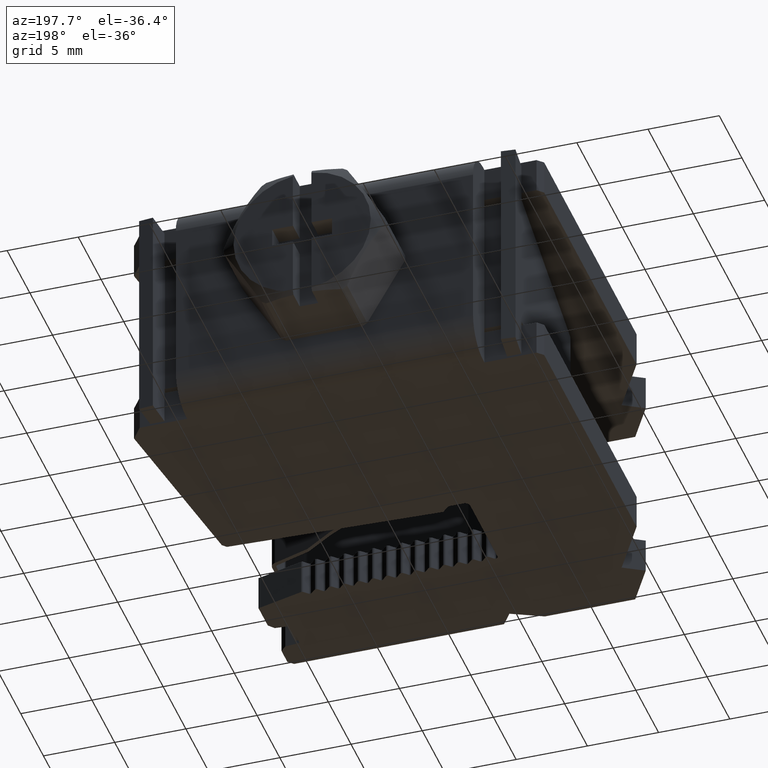
[diagram: clean part render]
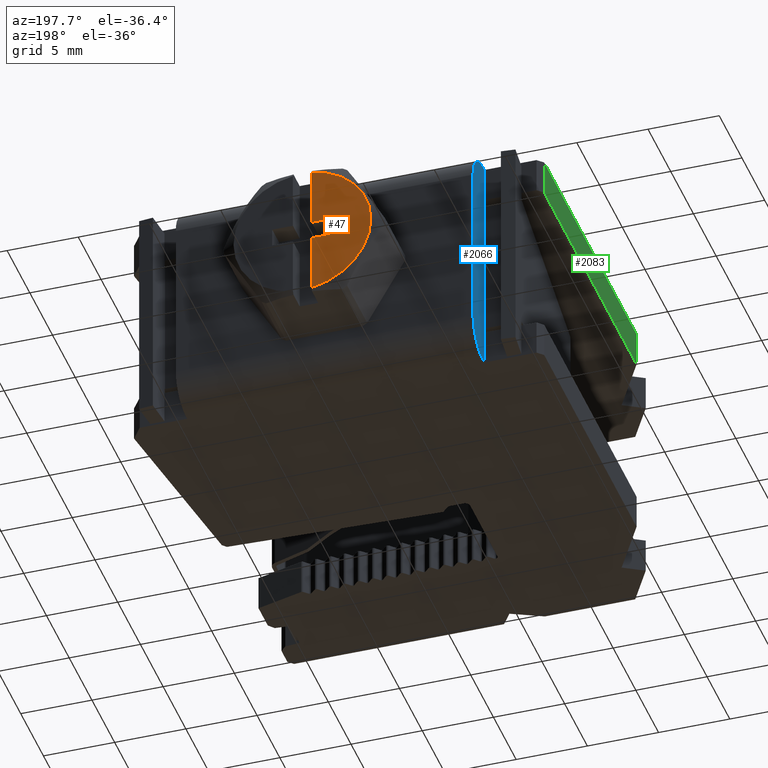
[diagram: same view with three faces highlighted in distinct colors, each labeled with its STEP entity id]
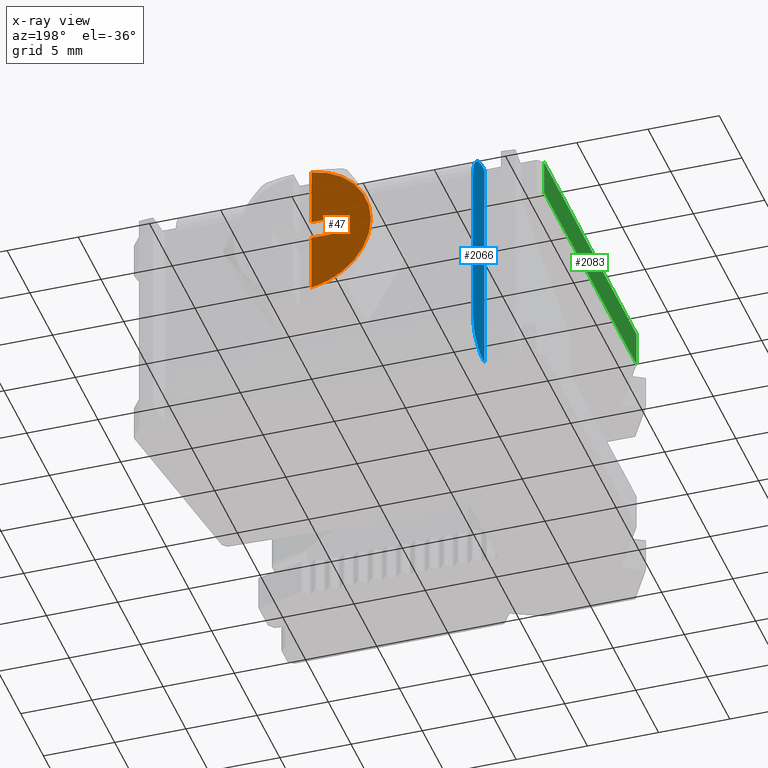
[diagram: x-ray of the same camera — body ghosted, the three highlighted faces saturated]
A machine part, auxiliary view with three faces highlighted in distinct colors.
The next image is the same camera in x-ray (body ghosted, the three faces saturated) — at least one of them is partly hidden behind the body in this view.
Their STEP definitions:

[orange] entity #47 — the highlighted planar face has unit normal (0, -1, 0).
#47 = ADVANCED_FACE ( 'NONE', ( #4473 ), #4476, .F. ) ;
#226 = EDGE_LOOP ( 'NONE', ( #3092, #3058, #1392, #3081, #3118, #1355 ) ) ;
#716 = EDGE_CURVE ( 'NONE', #2407, #2468, #5172, .T. ) ;
#750 = EDGE_CURVE ( 'NONE', #2468, #2358, #5240, .T. ) ;
#764 = EDGE_CURVE ( 'NONE', #2358, #2471, #5318, .T. ) ;
#788 = EDGE_CURVE ( 'NONE', #2452, #2407, #5394, .T. ) ;
#820 = EDGE_CURVE ( 'NONE', #2471, #2446, #6535, .T. ) ;
#828 = EDGE_CURVE ( 'NONE', #2452, #2446, #6242, .T. ) ;
#1355 = ORIENTED_EDGE ( 'NONE', *, *, #750, .F. ) ;
#1392 = ORIENTED_EDGE ( 'NONE', *, *, #828, .T. ) ;
#2358 = VERTEX_POINT ( 'NONE', #9974 ) ;
#2407 = VERTEX_POINT ( 'NONE', #9994 ) ;
#2446 = VERTEX_POINT ( 'NONE', #9959 ) ;
#2452 = VERTEX_POINT ( 'NONE', #10001 ) ;
#2468 = VERTEX_POINT ( 'NONE', #10024 ) ;
#2471 = VERTEX_POINT ( 'NONE', #10026 ) ;
#3058 = ORIENTED_EDGE ( 'NONE', *, *, #788, .F. ) ;
#3081 = ORIENTED_EDGE ( 'NONE', *, *, #820, .F. ) ;
#3092 = ORIENTED_EDGE ( 'NONE', *, *, #716, .F. ) ;
#3118 = ORIENTED_EDGE ( 'NONE', *, *, #764, .F. ) ;
#4458 = DIRECTION ( 'NONE',  ( 0.0000000000000000000, -0.0000000000000000000, -1.000000000000000000 ) ) ;
#4465 = DIRECTION ( 'NONE',  ( 0.0000000000000000000, -1.000000000000000000, 0.0000000000000000000 ) ) ;
#4473 = FACE_OUTER_BOUND ( 'NONE', #226, .T. ) ;
#4476 = PLANE ( 'NONE',  #11707 ) ;
#4486 = CARTESIAN_POINT ( 'NONE',  ( 9.156278230129213800, 34.72833341091160300, 4.000000000000000000 ) ) ;
#5130 = DIRECTION ( 'NONE',  ( -1.000000000000000000, 0.0000000000000000000, 0.0000000000000000000 ) ) ;
#5151 = CARTESIAN_POINT ( 'NONE',  ( 8.506278230131394800, 34.72833341091160300, 3.349999999999461000 ) ) ;
#5172 = LINE ( 'NONE', #5151, #6383 ) ;
#5223 = CARTESIAN_POINT ( 'NONE',  ( 7.056278230129779100, 34.72833341091160300, 4.649999999994155300 ) ) ;
#5240 = LINE ( 'NONE', #5223, #6189 ) ;
#5303 = DIRECTION ( 'NONE',  ( -0.0000000000000000000, -0.0000000000000000000, 1.000000000000000000 ) ) ;
#5318 = LINE ( 'NONE', #5342, #6166 ) ;
#5331 = DIRECTION ( 'NONE',  ( 1.000000000000000000, -0.0000000000000000000, -0.0000000000000000000 ) ) ;
#5342 = CARTESIAN_POINT ( 'NONE',  ( 8.506278230135059500, 34.72833341091160300, 4.649999999994155300 ) ) ;
#5367 = DIRECTION ( 'NONE',  ( -0.0000000000000000000, -0.0000000000000000000, 1.000000000000000000 ) ) ;
#5394 = LINE ( 'NONE', #5401, #6167 ) ;
#5401 = CARTESIAN_POINT ( 'NONE',  ( 8.506278230131394800, 34.72833341091160300, 3.349999999999461000 ) ) ;
#6166 = VECTOR ( 'NONE', #5331, 1000.000000000000000 ) ;
#6167 = VECTOR ( 'NONE', #5367, 1000.000000000000000 ) ;
#6171 = VECTOR ( 'NONE', #6555, 1000.000000000000000 ) ;
#6189 = VECTOR ( 'NONE', #5303, 1000.000000000000000 ) ;
#6226 = AXIS2_PLACEMENT_3D ( 'NONE', #6520, #6540, #6558 ) ;
#6242 = CIRCLE ( 'NONE', #6226, 4.821271174574592400 ) ;
#6383 = VECTOR ( 'NONE', #5130, 1000.000000000000000 ) ;
#6520 = CARTESIAN_POINT ( 'NONE',  ( 9.156278230129213800, 34.72833341091205000, 4.000000000000000000 ) ) ;
#6535 = LINE ( 'NONE', #6548, #6171 ) ;
#6540 = DIRECTION ( 'NONE',  ( -0.0000000000000000000, 1.000000000000000000, -0.0000000000000000000 ) ) ;
#6548 = CARTESIAN_POINT ( 'NONE',  ( 8.506278230135059500, 34.72833341091160300, 9.000000000000005300 ) ) ;
#6555 = DIRECTION ( 'NONE',  ( -0.0000000000000000000, -0.0000000000000000000, 1.000000000000000000 ) ) ;
#6558 = DIRECTION ( 'NONE',  ( 0.0000000000000000000, 0.0000000000000000000, 1.000000000000000000 ) ) ;
#9959 = CARTESIAN_POINT ( 'NONE',  ( 8.506278230135169600, 34.72833341091205000, 8.777253995633016000 ) ) ;
#9974 = CARTESIAN_POINT ( 'NONE',  ( 7.056278230129779100, 34.72833341091160300, 4.649999999994155300 ) ) ;
#9994 = CARTESIAN_POINT ( 'NONE',  ( 8.506278230131394800, 34.72833341091160300, 3.349999999999461000 ) ) ;
#10001 = CARTESIAN_POINT ( 'NONE',  ( 8.506278230131394800, 34.72833341091160300, -0.7772539956333799300 ) ) ;
#10024 = CARTESIAN_POINT ( 'NONE',  ( 7.056278230129779100, 34.72833341091160300, 3.349999999999461000 ) ) ;
#10026 = CARTESIAN_POINT ( 'NONE',  ( 8.506278230135059500, 34.72833341091160300, 4.649999999994155300 ) ) ;
#11707 = AXIS2_PLACEMENT_3D ( 'NONE', #4486, #4465, #4458 ) ;

[blue] entity #2066 — the highlighted planar face has unit normal (-1, -0, 0).
#252 = EDGE_LOOP ( 'NONE', ( #1042, #1674, #1074, #1076, #1693, #1675, #1694, #1091 ) ) ;
#1042 = ORIENTED_EDGE ( 'NONE', *, *, #2080, .F. ) ;
#1074 = ORIENTED_EDGE ( 'NONE', *, *, #2070, .F. ) ;
#1076 = ORIENTED_EDGE ( 'NONE', *, *, #1758, .T. ) ;
#1091 = ORIENTED_EDGE ( 'NONE', *, *, #2063, .T. ) ;
#1674 = ORIENTED_EDGE ( 'NONE', *, *, #2086, .T. ) ;
#1675 = ORIENTED_EDGE ( 'NONE', *, *, #1800, .T. ) ;
#1693 = ORIENTED_EDGE ( 'NONE', *, *, #2127, .T. ) ;
#1694 = ORIENTED_EDGE ( 'NONE', *, *, #4847, .F. ) ;
#1758 = EDGE_CURVE ( 'NONE', #3572, #3367, #8531, .T. ) ;
#1800 = EDGE_CURVE ( 'NONE', #3357, #3471, #8690, .T. ) ;
#2063 = EDGE_CURVE ( 'NONE', #3490, #3573, #9200, .T. ) ;
#2066 = ADVANCED_FACE ( 'NONE', ( #10488 ), #10462, .T. ) ;
#2070 = EDGE_CURVE ( 'NONE', #3572, #3571, #10538, .T. ) ;
#2080 = EDGE_CURVE ( 'NONE', #2277, #3573, #10501, .T. ) ;
#2086 = EDGE_CURVE ( 'NONE', #2277, #3571, #9257, .T. ) ;
#2127 = EDGE_CURVE ( 'NONE', #3367, #3357, #9516, .T. ) ;
#2277 = VERTEX_POINT ( 'NONE', #9846 ) ;
#3357 = VERTEX_POINT ( 'NONE', #10303 ) ;
#3367 = VERTEX_POINT ( 'NONE', #10271 ) ;
#3471 = VERTEX_POINT ( 'NONE', #10397 ) ;
#3490 = VERTEX_POINT ( 'NONE', #10411 ) ;
#3571 = VERTEX_POINT ( 'NONE', #10804 ) ;
#3572 = VERTEX_POINT ( 'NONE', #10753 ) ;
#3573 = VERTEX_POINT ( 'NONE', #10761 ) ;
#4847 = EDGE_CURVE ( 'NONE', #3490, #3471, #10809, .T. ) ;
#7756 = VECTOR ( 'NONE', #8530, 1000.000000000000000 ) ;
#7815 = VECTOR ( 'NONE', #8692, 1000.000000000000000 ) ;
#8530 = DIRECTION ( 'NONE',  ( 0.0000000000000000000, 0.0000000000000000000, 1.000000000000000000 ) ) ;
#8531 = LINE ( 'NONE', #8550, #7756 ) ;
#8550 = CARTESIAN_POINT ( 'NONE',  ( -1.278721769870785600, 27.32833341090971000, -14.51688671857709400 ) ) ;
#8684 = CARTESIAN_POINT ( 'NONE',  ( -1.278721769870785600, 27.32833341090971000, -14.51688671857709400 ) ) ;
#8690 = LINE ( 'NONE', #8684, #7815 ) ;
#8692 = DIRECTION ( 'NONE',  ( 0.0000000000000000000, 0.0000000000000000000, 1.000000000000000000 ) ) ;
#8946 = VECTOR ( 'NONE', #10815, 1000.000000000000000 ) ;
#9200 = CIRCLE ( 'NONE', #9201, 2.149999999999999000 ) ;
#9201 = AXIS2_PLACEMENT_3D ( 'NONE', #10444, #10478, #10477 ) ;
#9209 = AXIS2_PLACEMENT_3D ( 'NONE', #10489, #10450, #10457 ) ;
#9257 = CIRCLE ( 'NONE', #9260, 2.149999999999999000 ) ;
#9260 = AXIS2_PLACEMENT_3D ( 'NONE', #10585, #10586, #10564 ) ;
#9290 = VECTOR ( 'NONE', #10537, 1000.000000000000000 ) ;
#9299 = VECTOR ( 'NONE', #10516, 1000.000000000000000 ) ;
#9331 = VECTOR ( 'NONE', #9491, 1000.000000000000000 ) ;
#9491 = DIRECTION ( 'NONE',  ( 0.0000000000000000000, 0.0000000000000000000, 1.000000000000000000 ) ) ;
#9514 = CARTESIAN_POINT ( 'NONE',  ( -1.278721769870785600, 27.32833341090971000, -14.51688671857709400 ) ) ;
#9516 = LINE ( 'NONE', #9514, #9331 ) ;
#9846 = CARTESIAN_POINT ( 'NONE',  ( -1.278721769870786700, 29.82833341090970700, -1.850000000000000100 ) ) ;
#10271 = CARTESIAN_POINT ( 'NONE',  ( -1.278721769870785300, 27.32833341090971000, -1.500000000000001300 ) ) ;
#10303 = CARTESIAN_POINT ( 'NONE',  ( -1.278721769870785300, 27.32833341090971000, 9.500000000000000000 ) ) ;
#10397 = CARTESIAN_POINT ( 'NONE',  ( -1.278721769870785100, 27.32833341090971000, 12.00000000000000000 ) ) ;
#10411 = CARTESIAN_POINT ( 'NONE',  ( -1.278721769870785600, 27.67833341090970800, 12.00000000000000000 ) ) ;
#10444 = CARTESIAN_POINT ( 'NONE',  ( -1.278721769870785600, 27.67833341090970800, 9.850000000000001400 ) ) ;
#10450 = DIRECTION ( 'NONE',  ( -1.000000000000000000, -4.770489558936222500E-016, 0.0000000000000000000 ) ) ;
#10457 = DIRECTION ( 'NONE',  ( 4.770489558936222500E-016, -1.000000000000000000, 0.0000000000000000000 ) ) ;
#10462 = PLANE ( 'NONE',  #9209 ) ;
#10477 = DIRECTION ( 'NONE',  ( 5.042800802258162300E-016, -1.000000000000000000, 0.0000000000000000000 ) ) ;
#10478 = DIRECTION ( 'NONE',  ( -1.000000000000000000, -4.770489558936222500E-016, 0.0000000000000000000 ) ) ;
#10488 = FACE_OUTER_BOUND ( 'NONE', #252, .T. ) ;
#10489 = CARTESIAN_POINT ( 'NONE',  ( -1.278721769870785600, 27.32833341090971000, -14.51688671857709400 ) ) ;
#10492 = CARTESIAN_POINT ( 'NONE',  ( -1.278721769870786900, 29.82833341090970700, -14.51688671857709400 ) ) ;
#10501 = LINE ( 'NONE', #10492, #9290 ) ;
#10516 = DIRECTION ( 'NONE',  ( -4.770489558936222500E-016, 1.000000000000000000, 0.0000000000000000000 ) ) ;
#10537 = DIRECTION ( 'NONE',  ( 0.0000000000000000000, 0.0000000000000000000, 1.000000000000000000 ) ) ;
#10538 = LINE ( 'NONE', #10539, #9299 ) ;
#10539 = CARTESIAN_POINT ( 'NONE',  ( -1.278721769870785600, 27.32833341090971000, -4.000000000000000000 ) ) ;
#10564 = DIRECTION ( 'NONE',  ( 5.042800802258162300E-016, -1.000000000000000000, 0.0000000000000000000 ) ) ;
#10585 = CARTESIAN_POINT ( 'NONE',  ( -1.278721769870785100, 27.67833341090970800, -1.850000000000000100 ) ) ;
#10586 = DIRECTION ( 'NONE',  ( -1.000000000000000000, -4.770489558936222500E-016, 0.0000000000000000000 ) ) ;
#10753 = CARTESIAN_POINT ( 'NONE',  ( -1.278721769870785100, 27.32833341090971000, -4.000000000000000000 ) ) ;
#10761 = CARTESIAN_POINT ( 'NONE',  ( -1.278721769870785100, 29.82833341090970700, 9.850000000000001400 ) ) ;
#10804 = CARTESIAN_POINT ( 'NONE',  ( -1.278721769870786900, 27.67833341090971200, -4.000000000000000000 ) ) ;
#10809 = LINE ( 'NONE', #10840, #8946 ) ;
#10815 = DIRECTION ( 'NONE',  ( 4.770489558936222500E-016, -1.000000000000000000, 0.0000000000000000000 ) ) ;
#10840 = CARTESIAN_POINT ( 'NONE',  ( -1.278721769870785600, 27.32833341090971000, 12.00000000000000000 ) ) ;

[green] entity #2083 — the highlighted planar face has unit normal (1, 0, -0).
#273 = EDGE_LOOP ( 'NONE', ( #1047, #1688, #1072, #1036 ) ) ;
#409 = VECTOR ( 'NONE', #5861, 1000.000000000000000 ) ;
#616 = EDGE_CURVE ( 'NONE', #3362, #3318, #5803, .T. ) ;
#1036 = ORIENTED_EDGE ( 'NONE', *, *, #1836, .F. ) ;
#1047 = ORIENTED_EDGE ( 'NONE', *, *, #2206, .F. ) ;
#1072 = ORIENTED_EDGE ( 'NONE', *, *, #616, .T. ) ;
#1688 = ORIENTED_EDGE ( 'NONE', *, *, #1808, .T. ) ;
#1808 = EDGE_CURVE ( 'NONE', #3476, #3362, #8765, .T. ) ;
#1836 = EDGE_CURVE ( 'NONE', #3491, #3318, #8794, .T. ) ;
#2083 = ADVANCED_FACE ( 'NONE', ( #10514 ), #10568, .F. ) ;
#2206 = EDGE_CURVE ( 'NONE', #3476, #3491, #9715, .T. ) ;
#3318 = VERTEX_POINT ( 'NONE', #10204 ) ;
#3362 = VERTEX_POINT ( 'NONE', #10284 ) ;
#3476 = VERTEX_POINT ( 'NONE', #10439 ) ;
#3491 = VERTEX_POINT ( 'NONE', #10427 ) ;
#5803 = LINE ( 'NONE', #5831, #409 ) ;
#5831 = CARTESIAN_POINT ( 'NONE',  ( -5.343721769870788000, -12.16975933738561000, 9.499999999999992900 ) ) ;
#5861 = DIRECTION ( 'NONE',  ( 0.0000000000000000000, -1.000000000000000000, -1.481422036032299400E-016 ) ) ;
#7552 = VECTOR ( 'NONE', #8816, 1000.000000000000000 ) ;
#7824 = VECTOR ( 'NONE', #8742, 1000.000000000000000 ) ;
#8742 = DIRECTION ( 'NONE',  ( -0.0000000000000000000, -0.0000000000000000000, -1.000000000000000000 ) ) ;
#8759 = CARTESIAN_POINT ( 'NONE',  ( -5.343721769870788000, 26.91928396542518300, 12.00000000000000000 ) ) ;
#8765 = LINE ( 'NONE', #8759, #7824 ) ;
#8778 = CARTESIAN_POINT ( 'NONE',  ( -5.343721769870788000, 6.587941225643072900, 12.00000000000000000 ) ) ;
#8794 = LINE ( 'NONE', #8778, #7552 ) ;
#8816 = DIRECTION ( 'NONE',  ( -0.0000000000000000000, -0.0000000000000000000, -1.000000000000000000 ) ) ;
#9291 = AXIS2_PLACEMENT_3D ( 'NONE', #10580, #10562, #10581 ) ;
#9417 = VECTOR ( 'NONE', #9717, 1000.000000000000000 ) ;
#9715 = LINE ( 'NONE', #9716, #9417 ) ;
#9716 = CARTESIAN_POINT ( 'NONE',  ( -5.343721769870788000, -12.16975933738561000, 12.00000000000000000 ) ) ;
#9717 = DIRECTION ( 'NONE',  ( 0.0000000000000000000, -1.000000000000000000, 0.0000000000000000000 ) ) ;
#10204 = CARTESIAN_POINT ( 'NONE',  ( -5.343721769870788000, 6.587941225643072900, 9.499999999999996400 ) ) ;
#10284 = CARTESIAN_POINT ( 'NONE',  ( -5.343721769870788000, 26.91928396542518300, 9.499999999999998200 ) ) ;
#10427 = CARTESIAN_POINT ( 'NONE',  ( -5.343721769870786200, 6.587941225643072900, 12.00000000000000000 ) ) ;
#10439 = CARTESIAN_POINT ( 'NONE',  ( -5.343721769870788000, 26.91928396542518300, 12.00000000000000000 ) ) ;
#10514 = FACE_OUTER_BOUND ( 'NONE', #273, .T. ) ;
#10562 = DIRECTION ( 'NONE',  ( 1.000000000000000000, 0.0000000000000000000, -0.0000000000000000000 ) ) ;
#10568 = PLANE ( 'NONE',  #9291 ) ;
#10580 = CARTESIAN_POINT ( 'NONE',  ( -5.343721769870788000, -12.16975933738561000, 12.00000000000000000 ) ) ;
#10581 = DIRECTION ( 'NONE',  ( -0.0000000000000000000, 0.0000000000000000000, -1.000000000000000000 ) ) ;